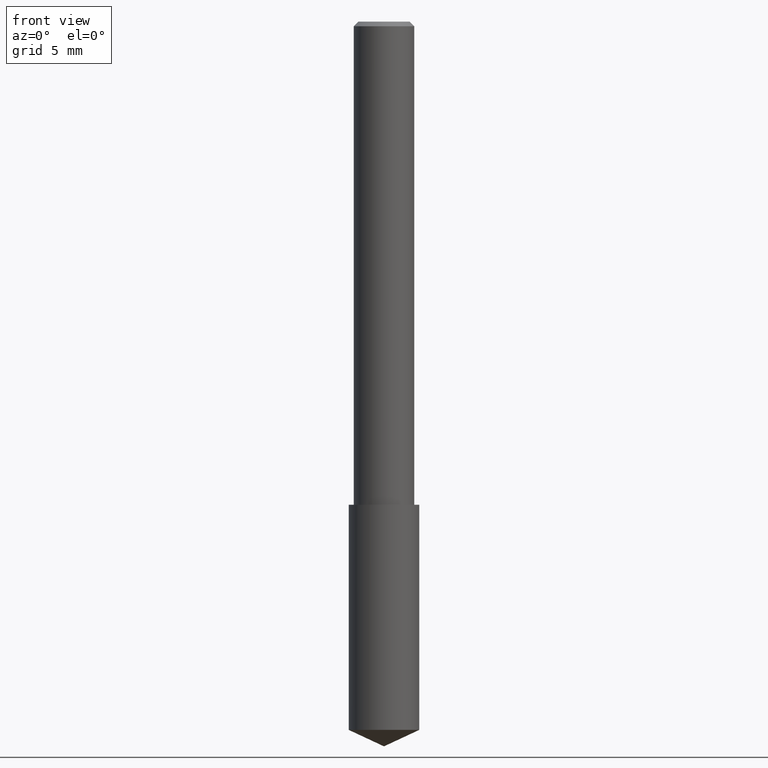
[diagram: clean part render]
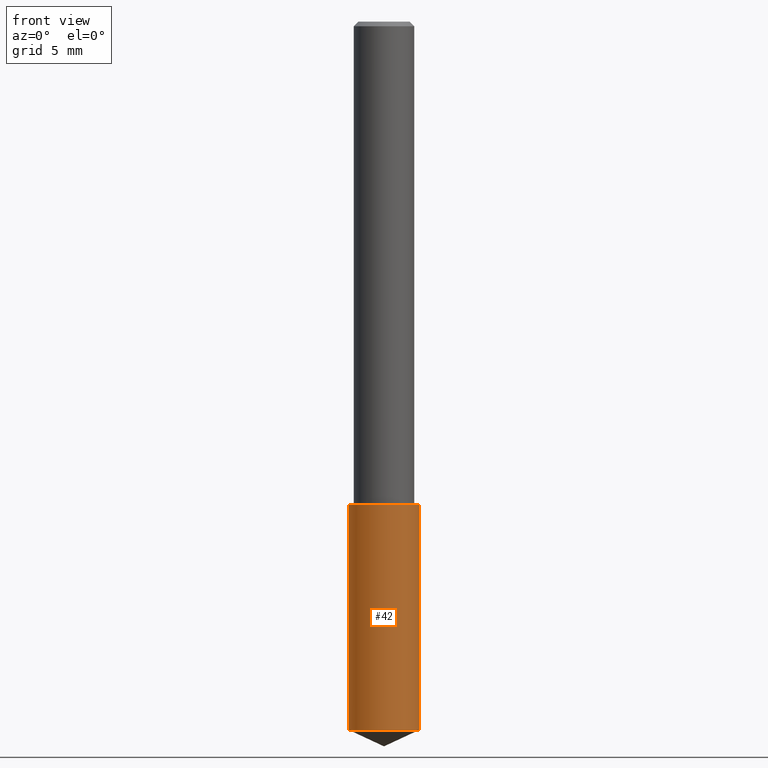
[diagram: same view with one face highlighted and labeled with its STEP entity id]
A machine part, front view. The second image highlights one B-rep face of the part: STEP entity #42.
In plain terms, the highlighted cylindrical surface (edge-blend (fillet) strip) has radius 1.8504 mm, axis along (-0, 0, 1).
Its self-contained STEP definition (entity closure, byte-faithful):
#2 = CARTESIAN_POINT ( 'NONE',  ( 2.445468806185136877E-29, -3.491481338843145977E-15, -1.000000000000000222 ) ) ;
#11 = EDGE_CURVE ( 'NONE', #93, #97, #141, .T. ) ;
#17 = DIRECTION ( 'NONE',  ( -2.445468806185136597E-29, 3.491481338843145583E-15, 1.000000000000000000 ) ) ;
#21 = VERTEX_POINT ( 'NONE', #154 ) ;
#42 = ADVANCED_FACE ( 'NONE', ( #178 ), #338, .T. ) ;
#46 = VECTOR ( 'NONE', #50, 39.37007874015748143 ) ;
#49 = DIRECTION ( 'NONE',  ( 1.000000000000000000, -6.982962677686265922E-15, 0.000000000000000000 ) ) ;
#50 = DIRECTION ( 'NONE',  ( -2.445468806185136877E-29, 3.491481338843145188E-15, 1.000000000000000000 ) ) ;
#59 = CIRCLE ( 'NONE', #279, 0.07284999999999999809 ) ;
#77 = DIRECTION ( 'NONE',  ( -2.445468806185136597E-29, 3.491481338843145583E-15, 1.000000000000000000 ) ) ;
#89 = AXIS2_PLACEMENT_3D ( 'NONE', #136, #77, #49 ) ;
#93 = VERTEX_POINT ( 'NONE', #95 ) ;
#95 = CARTESIAN_POINT ( 'NONE',  ( 0.07285000000000002585, -5.627323427484784326E-15, -1.466029487103408746 ) ) ;
#97 = VERTEX_POINT ( 'NONE', #328 ) ;
#106 = CIRCLE ( 'NONE', #311, 0.07285000000000001197 ) ;
#125 = VERTEX_POINT ( 'NONE', #305 ) ;
#136 = CARTESIAN_POINT ( 'NONE',  ( 2.445468806185137438E-29, -3.491481338843146371E-15, -1.000000000000000222 ) ) ;
#141 = LINE ( 'NONE', #143, #197 ) ;
#143 = CARTESIAN_POINT ( 'NONE',  ( 0.07284999999999999809, -4.000190169912591050E-15, -1.000000000000000222 ) ) ;
#147 = CARTESIAN_POINT ( 'NONE',  ( -0.07284999999999999809, -2.973850955841913597E-15, -1.000000000000000222 ) ) ;
#154 = CARTESIAN_POINT ( 'NONE',  ( -0.07284999999999999809, -3.787417584628009446E-15, -1.000000000000000222 ) ) ;
#178 = FACE_OUTER_BOUND ( 'NONE', #318, .T. ) ;
#182 = ORIENTED_EDGE ( 'NONE', *, *, #292, .F. ) ;
#197 = VECTOR ( 'NONE', #261, 39.37007874015748143 ) ;
#204 = CARTESIAN_POINT ( 'NONE',  ( 3.585129379658981357E-29, -5.118614596415340043E-15, -1.466029487103408746 ) ) ;
#245 = ORIENTED_EDGE ( 'NONE', *, *, #310, .T. ) ;
#251 = LINE ( 'NONE', #147, #46 ) ;
#261 = DIRECTION ( 'NONE',  ( -2.445468806185136877E-29, 3.491481338843145188E-15, 1.000000000000000000 ) ) ;
#267 = ORIENTED_EDGE ( 'NONE', *, *, #11, .T. ) ;
#275 = DIRECTION ( 'NONE',  ( 1.000000000000000000, -6.982962677686265133E-15, 0.000000000000000000 ) ) ;
#279 = AXIS2_PLACEMENT_3D ( 'NONE', #2, #317, #289 ) ;
#289 = DIRECTION ( 'NONE',  ( 1.000000000000000000, -6.982962677686265922E-15, 0.000000000000000000 ) ) ;
#292 = EDGE_CURVE ( 'NONE', #21, #97, #59, .T. ) ;
#300 = ORIENTED_EDGE ( 'NONE', *, *, #335, .F. ) ;
#305 = CARTESIAN_POINT ( 'NONE',  ( -0.07285000000000002585, -4.600984213414106479E-15, -1.466029487103408746 ) ) ;
#310 = EDGE_CURVE ( 'NONE', #125, #93, #106, .T. ) ;
#311 = AXIS2_PLACEMENT_3D ( 'NONE', #204, #17, #275 ) ;
#317 = DIRECTION ( 'NONE',  ( -2.445468806185136597E-29, 3.491481338843145583E-15, 1.000000000000000000 ) ) ;
#318 = EDGE_LOOP ( 'NONE', ( #300, #245, #267, #182 ) ) ;
#328 = CARTESIAN_POINT ( 'NONE',  ( 0.07284999999999999809, -4.000190169912590261E-15, -1.000000000000000222 ) ) ;
#335 = EDGE_CURVE ( 'NONE', #125, #21, #251, .T. ) ;
#338 = CYLINDRICAL_SURFACE ( 'NONE', #89, 0.07284999999999999809 ) ;